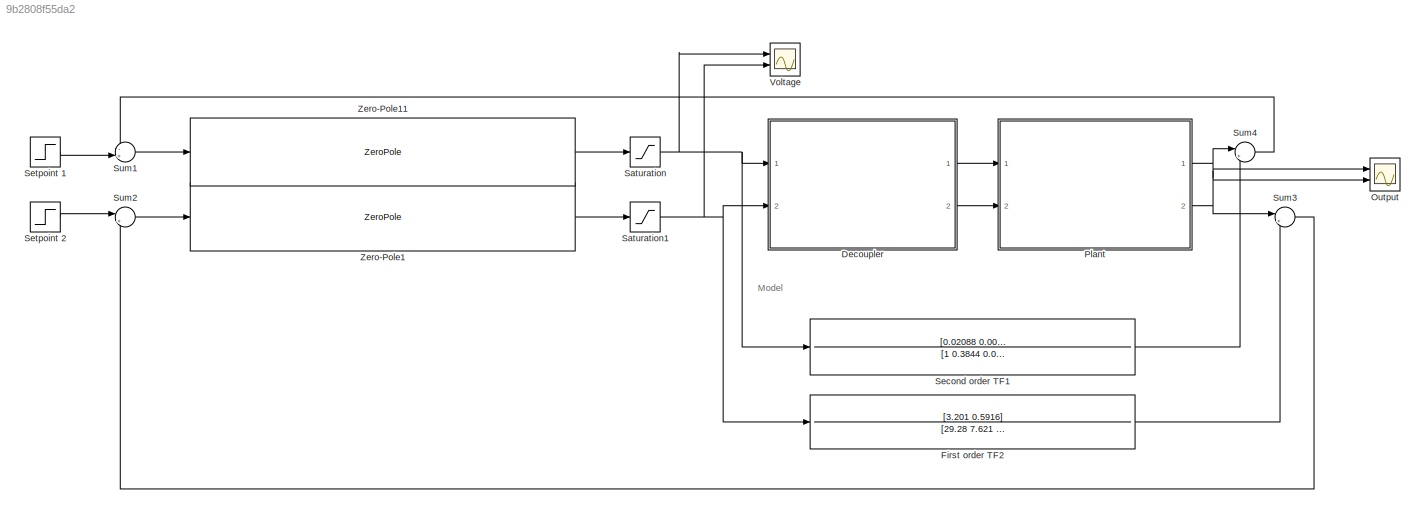
MODEL slx_9b2808f55da2
KIND model
CONFIG AbsTol = auto
CONFIG EnableMultiTasking = off
CONFIG FixedStep = 0.005
CONFIG MaxStep = auto
CONFIG MinStep = auto
CONFIG RelTol = 1e-3
CONFIG SampleTimeConstraint = Unconstrained
CONFIG Solver = ode14x
CONFIG SolverName = ode14x
CONFIG StartTime = 0.0
CONFIG StopTime = 300
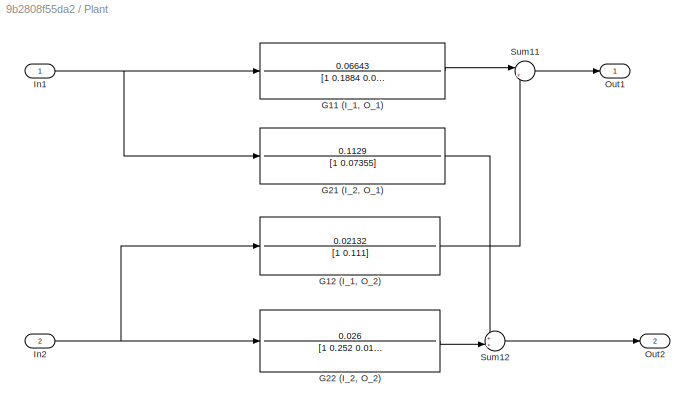
BLOCK [SubSystem]  Plant
  Ports = [2, 2]
  RequestExecContextInheritance = off
BLOCK [TransferFcn]  Plant/G11 (I_1, O_1)
  Denominator = [1 0.1884 0.008447]
  Numerator = 0.06643
BLOCK [TransferFcn]  Plant/G12 (I_1, O_2)
  Denominator = [1 0.111]
  Numerator = 0.02132
BLOCK [TransferFcn]  Plant/G21 (I_2, O_1)
  Denominator = [1 0.07355]
  Numerator = 0.1129
BLOCK [TransferFcn]  Plant/G22 (I_2, O_2)
  Denominator = [1 0.252 0.01565]
  Numerator = 0.026
BLOCK [Inport]  Plant/In1
BLOCK [Inport]  Plant/In2
  Port = 2
BLOCK [Outport]  Plant/Out1
  VectorParamsAs1DForOutWhenUnconnected = off
BLOCK [Outport]  Plant/Out2
  Port = 2
  VectorParamsAs1DForOutWhenUnconnected = off
BLOCK [Sum]  Plant/Sum11
  Inputs = |++
  Ports = [2, 1]
BLOCK [Sum]  Plant/Sum12
  Inputs = ++|
  Ports = [2, 1]
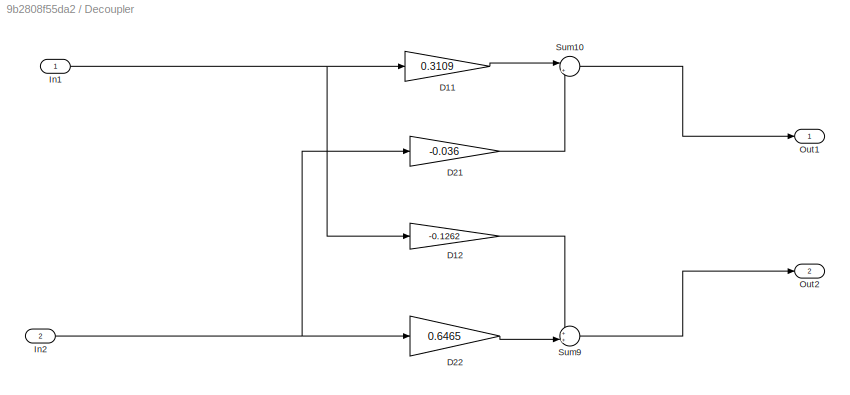
BLOCK [SubSystem] Decoupler
  Ports = [2, 2]
  RequestExecContextInheritance = off
BLOCK [Gain] Decoupler/D11
  Gain = 0.3109
BLOCK [Gain] Decoupler/D12
  Gain = -0.1262
BLOCK [Gain] Decoupler/D21
  Gain = -0.036
BLOCK [Gain] Decoupler/D22
  Gain = 0.6465
BLOCK [Inport] Decoupler/In1
BLOCK [Inport] Decoupler/In2
  Port = 2
BLOCK [Outport] Decoupler/Out1
  VectorParamsAs1DForOutWhenUnconnected = off
BLOCK [Outport] Decoupler/Out2
  Port = 2
  VectorParamsAs1DForOutWhenUnconnected = off
BLOCK [Sum] Decoupler/Sum10
  Inputs = |++
  Ports = [2, 1]
BLOCK [Sum] Decoupler/Sum9
  Inputs = ++|
  Ports = [2, 1]
BLOCK [TransferFcn] First order TF2
  Denominator = [29.28 7.621 0.4084]
  Numerator = [3.201 0.5916]
BLOCK [Scope] Output
  Floating = off
  NumInputPorts = 2
  Ports = [2]
  ScopeSpecificationString = Simulink.scopes.TimeScopeBlockCfg('CurrentConfiguration', extmgr.ConfigurationSet(extmgr.Configuration('Core','General UI',true),extmgr.Configuration('Core','Source UI',true),extmgr.Configuration('Sources','WiredSimulink',true),extmgr.Configuration('Visuals','Time Domain',true,'SerializedDisplays',{struct('MinYLimReal','-1.50353','MaxYLimReal','13.53175','YLabelReal','','MinYLimMag','0.00000','Max...<+1756ch>
BLOCK [Saturate] Saturation
  LowerLimit = 0
  UpperLimit = 12
BLOCK [Saturate] Saturation1
  LowerLimit = 0
  UpperLimit = 12
BLOCK [TransferFcn] Second order TF1
  Denominator = [1 0.3844 0.07581 0.00747 0.0002687]
  Numerator = [0.02088 0.004041 0.000624]
BLOCK [Step] Setpoint 1
  After = 12
  SampleTime = 0
  Time = 0
BLOCK [Step] Setpoint 2
  After = 5.5
  SampleTime = 0
  Time = 0
BLOCK [Sum] Sum1
  Inputs = -+|
  Ports = [2, 1]
BLOCK [Sum] Sum2
  Inputs = |+-
  Ports = [2, 1]
BLOCK [Sum] Sum3
  Inputs = |+-
  Ports = [2, 1]
BLOCK [Sum] Sum4
  Inputs = |+-
  Ports = [2, 1]
BLOCK [Scope] Voltage
  Floating = off
  NumInputPorts = 2
  Ports = [2]
  ScopeSpecificationString = Simulink.scopes.TimeScopeBlockCfg('CurrentConfiguration', extmgr.ConfigurationSet(extmgr.Configuration('Core','General UI',true),extmgr.Configuration('Core','Source UI',true),extmgr.Configuration('Sources','WiredSimulink',true,'DataLoggingVariableName','ScopeData1'),extmgr.Configuration('Visuals','Time Domain',true,'SerializedDisplays',{struct('MinYLimReal','2.91098','MaxYLimReal','13.00989','YLab...<+1411ch>
BLOCK [ZeroPole] Zero-Pole1
  Poles = [-0.1848 -0.10937]
  Zeros = [-0.1848 -0.0755]
BLOCK [ZeroPole] Zero-Pole11
  Poles = [-0.0961+0.1437i -0.0961-0.1437i -0.14455 -0.14455]
  Zeros = [-0.0961+0.1437i -0.0961-0.1437i -0.1116 -0.0806]
ANNOTATION (root): Model
LINE  Plant/G11 (I_1, O_1):1 ->  Plant/Sum11:1
LINE  Plant/G12 (I_1, O_2):1 ->  Plant/Sum11:2
LINE  Plant/G21 (I_2, O_1):1 ->  Plant/Sum12:1
LINE  Plant/G22 (I_2, O_2):1 ->  Plant/Sum12:2
NET  Plant/In1:1 ->  Plant/G11 (I_1, O_1):1,  Plant/G21 (I_2, O_1):1
NET  Plant/In2:1 ->  Plant/G12 (I_1, O_2):1,  Plant/G22 (I_2, O_2):1
LINE  Plant/Sum11:1 ->  Plant/Out1:1
LINE  Plant/Sum12:1 ->  Plant/Out2:1
NET  Plant:1 -> Output:1, Sum4:1
NET  Plant:2 -> Output:2, Sum3:1
LINE Decoupler/D11:1 -> Decoupler/Sum10:1
LINE Decoupler/D12:1 -> Decoupler/Sum9:1
LINE Decoupler/D21:1 -> Decoupler/Sum10:2
LINE Decoupler/D22:1 -> Decoupler/Sum9:2
NET Decoupler/In1:1 -> Decoupler/D11:1, Decoupler/D12:1
NET Decoupler/In2:1 -> Decoupler/D21:1, Decoupler/D22:1
LINE Decoupler/Sum10:1 -> Decoupler/Out1:1
LINE Decoupler/Sum9:1 -> Decoupler/Out2:1
LINE Decoupler:1 ->  Plant:1
LINE Decoupler:2 ->  Plant:2
LINE First order TF2:1 -> Sum3:2
NET Saturation1:1 -> Decoupler:2, First order TF2:1, Voltage:2
NET Saturation:1 -> Decoupler:1, Second order TF1:1, Voltage:1
LINE Second order TF1:1 -> Sum4:2
LINE Setpoint 1:1 -> Sum1:2
LINE Setpoint 2:1 -> Sum2:1
LINE Sum1:1 -> Zero-Pole11:1
LINE Sum2:1 -> Zero-Pole1:1
LINE Sum3:1 -> Sum2:2
LINE Sum4:1 -> Sum1:1
LINE Zero-Pole11:1 -> Saturation:1
LINE Zero-Pole1:1 -> Saturation1:1
note: NET lines group one-source signal fan-out (src -> all destinations, sorted); 1:1 wires keep LINE
